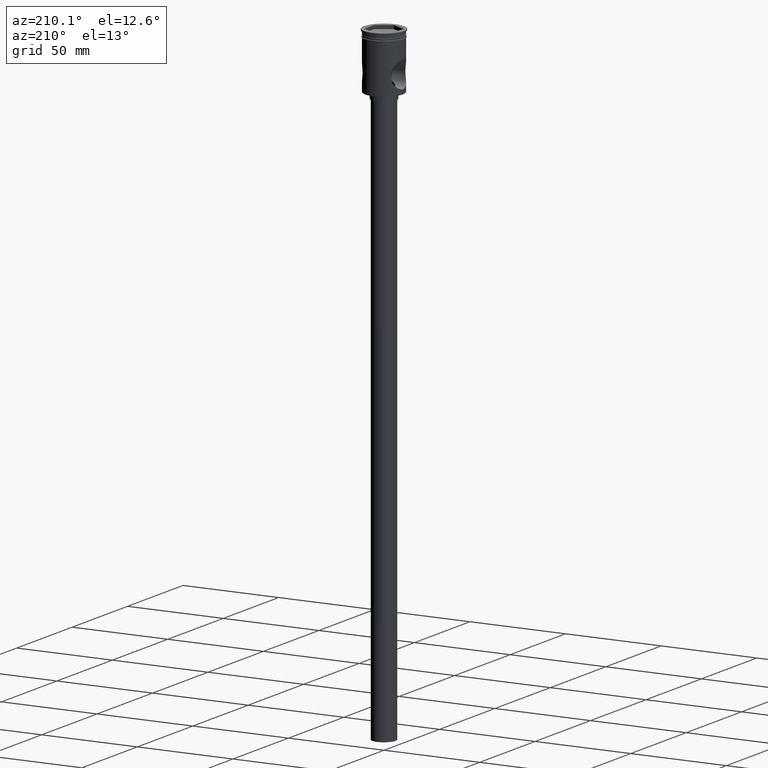
[diagram: clean part render]
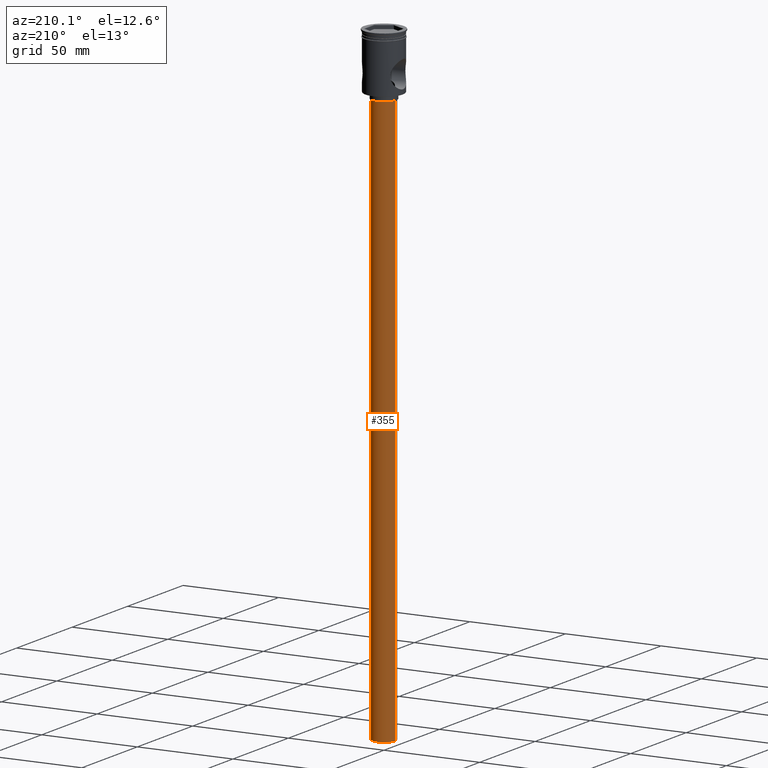
[diagram: same view with one face highlighted and labeled with its STEP entity id]
A machine part, auxiliary view. The second image highlights one B-rep face of the part: STEP entity #355.
In plain terms, the highlighted cylindrical surface (edge-blend (fillet) strip) has radius 6 mm, axis along (-0, -0, 1).
Its self-contained STEP definition (entity closure, byte-faithful):
#3 = CIRCLE ( 'NONE', #1179, 6.000000000000000888 ) ;
#7 = ORIENTED_EDGE ( 'NONE', *, *, #211, .F. ) ;
#58 = VERTEX_POINT ( 'NONE', #725 ) ;
#95 = DIRECTION ( 'NONE',  ( 0.000000000000000000, 0.000000000000000000, -1.000000000000000000 ) ) ;
#102 = CARTESIAN_POINT ( 'NONE',  ( -6.000000000000000888, 7.347880794884120722E-16, -329.5000000000000000 ) ) ;
#124 = EDGE_CURVE ( 'NONE', #381, #161, #300, .T. ) ;
#141 = CARTESIAN_POINT ( 'NONE',  ( -6.000000000000000888, 7.347880794884120722E-16, -32.50000000000000000 ) ) ;
#161 = VERTEX_POINT ( 'NONE', #1134 ) ;
#166 = ORIENTED_EDGE ( 'NONE', *, *, #960, .T. ) ;
#169 = EDGE_LOOP ( 'NONE', ( #7, #166, #1247, #282 ) ) ;
#211 = EDGE_CURVE ( 'NONE', #58, #381, #760, .T. ) ;
#280 = CARTESIAN_POINT ( 'NONE',  ( 6.000000000000000888, 0.000000000000000000, -329.5000000000000000 ) ) ;
#282 = ORIENTED_EDGE ( 'NONE', *, *, #124, .F. ) ;
#291 = AXIS2_PLACEMENT_3D ( 'NONE', #893, #796, #1243 ) ;
#300 = LINE ( 'NONE', #280, #815 ) ;
#355 = ADVANCED_FACE ( 'NONE', ( #1490 ), #436, .T. ) ;
#381 = VERTEX_POINT ( 'NONE', #1496 ) ;
#436 = CYLINDRICAL_SURFACE ( 'NONE', #291, 6.000000000000000888 ) ;
#661 = DIRECTION ( 'NONE',  ( 0.000000000000000000, 0.000000000000000000, -1.000000000000000000 ) ) ;
#725 = CARTESIAN_POINT ( 'NONE',  ( -6.000000000000000888, 7.347880794884120722E-16, -329.5000000000000000 ) ) ;
#733 = VERTEX_POINT ( 'NONE', #141 ) ;
#760 = CIRCLE ( 'NONE', #1175, 6.000000000000000888 ) ;
#796 = DIRECTION ( 'NONE',  ( -0.000000000000000000, -0.000000000000000000, 1.000000000000000000 ) ) ;
#815 = VECTOR ( 'NONE', #1353, 1000.000000000000000 ) ;
#822 = DIRECTION ( 'NONE',  ( -0.000000000000000000, -0.000000000000000000, 1.000000000000000000 ) ) ;
#893 = CARTESIAN_POINT ( 'NONE',  ( 0.000000000000000000, 0.000000000000000000, -329.5000000000000000 ) ) ;
#904 = DIRECTION ( 'NONE',  ( -1.000000000000000000, 0.000000000000000000, 0.000000000000000000 ) ) ;
#960 = EDGE_CURVE ( 'NONE', #58, #733, #1474, .T. ) ;
#1134 = CARTESIAN_POINT ( 'NONE',  ( 6.000000000000000888, 0.000000000000000000, -32.50000000000000000 ) ) ;
#1150 = CARTESIAN_POINT ( 'NONE',  ( 0.000000000000000000, 0.000000000000000000, -32.50000000000000000 ) ) ;
#1175 = AXIS2_PLACEMENT_3D ( 'NONE', #1523, #95, #1396 ) ;
#1179 = AXIS2_PLACEMENT_3D ( 'NONE', #1150, #661, #904 ) ;
#1231 = EDGE_CURVE ( 'NONE', #733, #161, #3, .T. ) ;
#1243 = DIRECTION ( 'NONE',  ( 1.000000000000000000, 0.000000000000000000, 0.000000000000000000 ) ) ;
#1247 = ORIENTED_EDGE ( 'NONE', *, *, #1231, .T. ) ;
#1353 = DIRECTION ( 'NONE',  ( -0.000000000000000000, -0.000000000000000000, 1.000000000000000000 ) ) ;
#1355 = VECTOR ( 'NONE', #822, 1000.000000000000000 ) ;
#1396 = DIRECTION ( 'NONE',  ( -1.000000000000000000, 0.000000000000000000, 0.000000000000000000 ) ) ;
#1474 = LINE ( 'NONE', #102, #1355 ) ;
#1490 = FACE_OUTER_BOUND ( 'NONE', #169, .T. ) ;
#1496 = CARTESIAN_POINT ( 'NONE',  ( 6.000000000000000888, 0.000000000000000000, -329.5000000000000000 ) ) ;
#1523 = CARTESIAN_POINT ( 'NONE',  ( 0.000000000000000000, 0.000000000000000000, -329.5000000000000000 ) ) ;